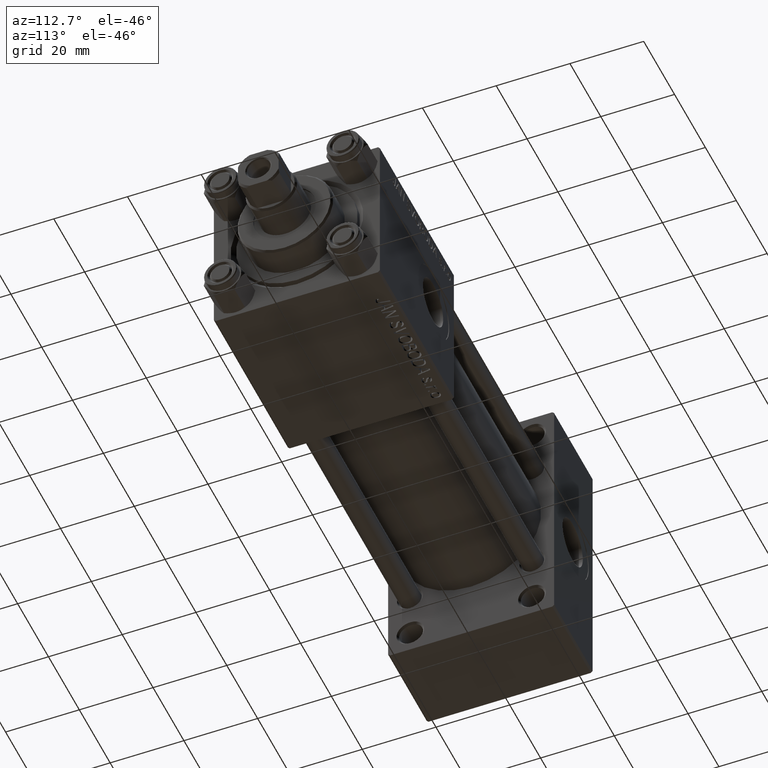
[diagram: clean part render]
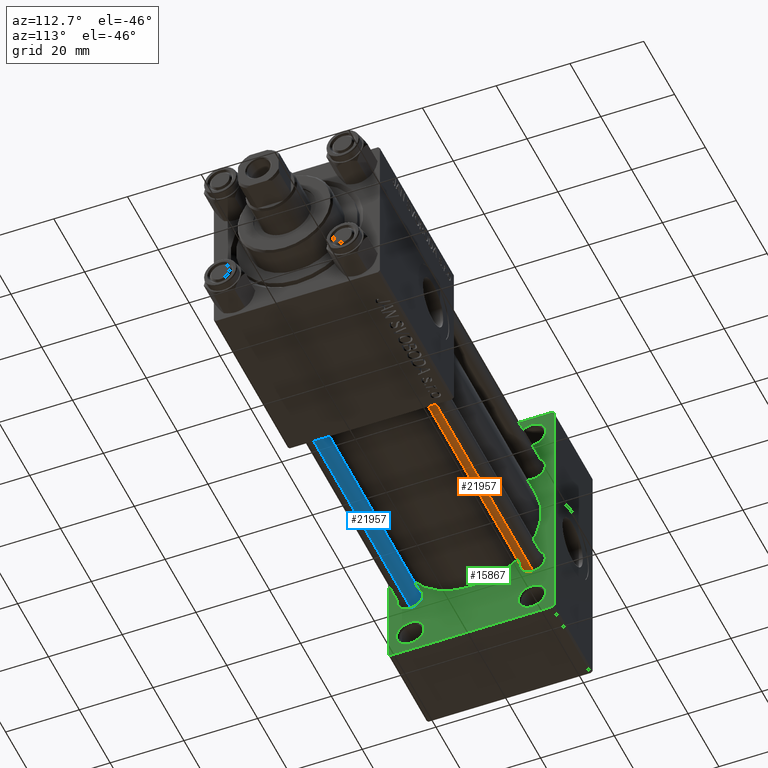
[diagram: same view with three faces highlighted in distinct colors, each labeled with its STEP entity id]
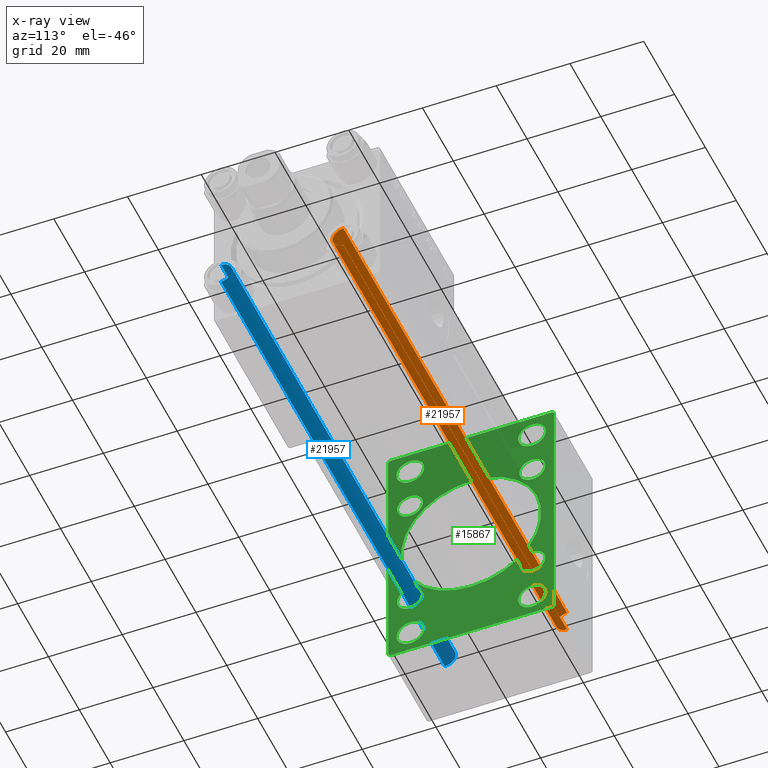
[diagram: x-ray of the same camera — body ghosted, the three highlighted faces saturated]
A machine part, auxiliary view with three faces highlighted in distinct colors.
The next image is the same camera in x-ray (body ghosted, the three faces saturated) — at least one of them is partly hidden behind the body in this view.
Their STEP definitions:

[orange] entity #21957 — the highlighted cylindrical surface (edge-blend (fillet) strip) has radius 3 mm, axis along (-1, 0, 0).
#138 = EDGE_CURVE ( 'NONE', #18203, #4237, #9981, .T. ) ;
#2865 = DIRECTION ( 'NONE',  ( -0.000000000000000000, -0.000000000000000000, -1.000000000000000000 ) ) ;
#3886 = EDGE_LOOP ( 'NONE', ( #37464, #24192, #49218, #7871 ) ) ;
#4237 = VERTEX_POINT ( 'NONE', #12541 ) ;
#5543 = CYLINDRICAL_SURFACE ( 'NONE', #32243, 3.000000000000000444 ) ;
#6536 = EDGE_CURVE ( 'NONE', #49014, #18203, #45547, .T. ) ;
#6652 = CARTESIAN_POINT ( 'NONE',  ( 3.000000000000000444, 3.673940397442060361E-16, 0.5000000000000004441 ) ) ;
#7871 = ORIENTED_EDGE ( 'NONE', *, *, #48553, .F. ) ;
#9981 = CIRCLE ( 'NONE', #37376, 3.000000000000000444 ) ;
#10184 = VECTOR ( 'NONE', #2865, 1000.000000000000000 ) ;
#10408 = DIRECTION ( 'NONE',  ( 1.000000000000000000, 0.000000000000000000, 0.000000000000000000 ) ) ;
#10796 = CARTESIAN_POINT ( 'NONE',  ( -3.000000000000000444, 0.000000000000000000, 145.5000000000000568 ) ) ;
#12541 = CARTESIAN_POINT ( 'NONE',  ( -3.000000000000000444, 0.000000000000000000, 0.5000000000000004441 ) ) ;
#13203 = DIRECTION ( 'NONE',  ( -0.000000000000000000, -0.000000000000000000, 1.000000000000000000 ) ) ;
#14369 = DIRECTION ( 'NONE',  ( -0.000000000000000000, -0.000000000000000000, -1.000000000000000000 ) ) ;
#17487 = DIRECTION ( 'NONE',  ( 1.000000000000000000, 0.000000000000000000, 0.000000000000000000 ) ) ;
#18021 = CARTESIAN_POINT ( 'NONE',  ( 3.000000000000000444, 3.673940397442060361E-16, 146.0000000000000000 ) ) ;
#18203 = VERTEX_POINT ( 'NONE', #6652 ) ;
#21957 = ADVANCED_FACE ( 'NONE', ( #25244 ), #5543, .T. ) ;
#24192 = ORIENTED_EDGE ( 'NONE', *, *, #6536, .T. ) ;
#25244 = FACE_OUTER_BOUND ( 'NONE', #3886, .T. ) ;
#29351 = CARTESIAN_POINT ( 'NONE',  ( 0.000000000000000000, 0.000000000000000000, 0.5000000000000004441 ) ) ;
#31167 = EDGE_CURVE ( 'NONE', #43561, #49014, #42769, .T. ) ;
#31487 = AXIS2_PLACEMENT_3D ( 'NONE', #45266, #33390, #10408 ) ;
#32100 = LINE ( 'NONE', #36145, #35178 ) ;
#32243 = AXIS2_PLACEMENT_3D ( 'NONE', #37115, #14369, #48485 ) ;
#33390 = DIRECTION ( 'NONE',  ( 0.000000000000000000, 0.000000000000000000, -1.000000000000000000 ) ) ;
#34787 = CARTESIAN_POINT ( 'NONE',  ( 3.000000000000000444, 3.673940397442060361E-16, 145.5000000000000568 ) ) ;
#35178 = VECTOR ( 'NONE', #42793, 1000.000000000000000 ) ;
#36145 = CARTESIAN_POINT ( 'NONE',  ( -3.000000000000000444, 0.000000000000000000, 146.0000000000000000 ) ) ;
#37115 = CARTESIAN_POINT ( 'NONE',  ( 0.000000000000000000, 0.000000000000000000, 146.0000000000000000 ) ) ;
#37376 = AXIS2_PLACEMENT_3D ( 'NONE', #29351, #13203, #17487 ) ;
#37464 = ORIENTED_EDGE ( 'NONE', *, *, #31167, .T. ) ;
#42769 = CIRCLE ( 'NONE', #31487, 3.000000000000000444 ) ;
#42793 = DIRECTION ( 'NONE',  ( -0.000000000000000000, -0.000000000000000000, -1.000000000000000000 ) ) ;
#43561 = VERTEX_POINT ( 'NONE', #10796 ) ;
#45266 = CARTESIAN_POINT ( 'NONE',  ( 0.000000000000000000, 0.000000000000000000, 145.5000000000000568 ) ) ;
#45547 = LINE ( 'NONE', #18021, #10184 ) ;
#48485 = DIRECTION ( 'NONE',  ( -1.000000000000000000, 0.000000000000000000, 0.000000000000000000 ) ) ;
#48553 = EDGE_CURVE ( 'NONE', #43561, #4237, #32100, .T. ) ;
#49014 = VERTEX_POINT ( 'NONE', #34787 ) ;
#49218 = ORIENTED_EDGE ( 'NONE', *, *, #138, .T. ) ;

[blue] entity #21957 — the highlighted cylindrical surface (edge-blend (fillet) strip) has radius 3 mm, axis along (1, -0, -0).
#138 = EDGE_CURVE ( 'NONE', #18203, #4237, #9981, .T. ) ;
#2865 = DIRECTION ( 'NONE',  ( -0.000000000000000000, -0.000000000000000000, -1.000000000000000000 ) ) ;
#3886 = EDGE_LOOP ( 'NONE', ( #37464, #24192, #49218, #7871 ) ) ;
#4237 = VERTEX_POINT ( 'NONE', #12541 ) ;
#5543 = CYLINDRICAL_SURFACE ( 'NONE', #32243, 3.000000000000000444 ) ;
#6536 = EDGE_CURVE ( 'NONE', #49014, #18203, #45547, .T. ) ;
#6652 = CARTESIAN_POINT ( 'NONE',  ( 3.000000000000000444, 3.673940397442060361E-16, 0.5000000000000004441 ) ) ;
#7871 = ORIENTED_EDGE ( 'NONE', *, *, #48553, .F. ) ;
#9981 = CIRCLE ( 'NONE', #37376, 3.000000000000000444 ) ;
#10184 = VECTOR ( 'NONE', #2865, 1000.000000000000000 ) ;
#10408 = DIRECTION ( 'NONE',  ( 1.000000000000000000, 0.000000000000000000, 0.000000000000000000 ) ) ;
#10796 = CARTESIAN_POINT ( 'NONE',  ( -3.000000000000000444, 0.000000000000000000, 145.5000000000000568 ) ) ;
#12541 = CARTESIAN_POINT ( 'NONE',  ( -3.000000000000000444, 0.000000000000000000, 0.5000000000000004441 ) ) ;
#13203 = DIRECTION ( 'NONE',  ( -0.000000000000000000, -0.000000000000000000, 1.000000000000000000 ) ) ;
#14369 = DIRECTION ( 'NONE',  ( -0.000000000000000000, -0.000000000000000000, -1.000000000000000000 ) ) ;
#17487 = DIRECTION ( 'NONE',  ( 1.000000000000000000, 0.000000000000000000, 0.000000000000000000 ) ) ;
#18021 = CARTESIAN_POINT ( 'NONE',  ( 3.000000000000000444, 3.673940397442060361E-16, 146.0000000000000000 ) ) ;
#18203 = VERTEX_POINT ( 'NONE', #6652 ) ;
#21957 = ADVANCED_FACE ( 'NONE', ( #25244 ), #5543, .T. ) ;
#24192 = ORIENTED_EDGE ( 'NONE', *, *, #6536, .T. ) ;
#25244 = FACE_OUTER_BOUND ( 'NONE', #3886, .T. ) ;
#29351 = CARTESIAN_POINT ( 'NONE',  ( 0.000000000000000000, 0.000000000000000000, 0.5000000000000004441 ) ) ;
#31167 = EDGE_CURVE ( 'NONE', #43561, #49014, #42769, .T. ) ;
#31487 = AXIS2_PLACEMENT_3D ( 'NONE', #45266, #33390, #10408 ) ;
#32100 = LINE ( 'NONE', #36145, #35178 ) ;
#32243 = AXIS2_PLACEMENT_3D ( 'NONE', #37115, #14369, #48485 ) ;
#33390 = DIRECTION ( 'NONE',  ( 0.000000000000000000, 0.000000000000000000, -1.000000000000000000 ) ) ;
#34787 = CARTESIAN_POINT ( 'NONE',  ( 3.000000000000000444, 3.673940397442060361E-16, 145.5000000000000568 ) ) ;
#35178 = VECTOR ( 'NONE', #42793, 1000.000000000000000 ) ;
#36145 = CARTESIAN_POINT ( 'NONE',  ( -3.000000000000000444, 0.000000000000000000, 146.0000000000000000 ) ) ;
#37115 = CARTESIAN_POINT ( 'NONE',  ( 0.000000000000000000, 0.000000000000000000, 146.0000000000000000 ) ) ;
#37376 = AXIS2_PLACEMENT_3D ( 'NONE', #29351, #13203, #17487 ) ;
#37464 = ORIENTED_EDGE ( 'NONE', *, *, #31167, .T. ) ;
#42769 = CIRCLE ( 'NONE', #31487, 3.000000000000000444 ) ;
#42793 = DIRECTION ( 'NONE',  ( -0.000000000000000000, -0.000000000000000000, -1.000000000000000000 ) ) ;
#43561 = VERTEX_POINT ( 'NONE', #10796 ) ;
#45266 = CARTESIAN_POINT ( 'NONE',  ( 0.000000000000000000, 0.000000000000000000, 145.5000000000000568 ) ) ;
#45547 = LINE ( 'NONE', #18021, #10184 ) ;
#48485 = DIRECTION ( 'NONE',  ( -1.000000000000000000, 0.000000000000000000, 0.000000000000000000 ) ) ;
#48553 = EDGE_CURVE ( 'NONE', #43561, #4237, #32100, .T. ) ;
#49014 = VERTEX_POINT ( 'NONE', #34787 ) ;
#49218 = ORIENTED_EDGE ( 'NONE', *, *, #138, .T. ) ;

[green] entity #15867 — the highlighted planar face has unit normal (-1, 0, 0).
#418 = CARTESIAN_POINT ( 'NONE',  ( 25.00000000000000000, 22.50000000000000355, 35.00000000000000711 ) ) ;
#506 = DIRECTION ( 'NONE',  ( 1.000000000000000000, -0.000000000000000000, 0.000000000000000000 ) ) ;
#593 = DIRECTION ( 'NONE',  ( 0.000000000000000000, 0.000000000000000000, 1.000000000000000000 ) ) ;
#666 = LINE ( 'NONE', #418, #42437 ) ;
#805 = EDGE_LOOP ( 'NONE', ( #44444, #30380 ) ) ;
#1075 = ORIENTED_EDGE ( 'NONE', *, *, #14099, .T. ) ;
#1102 = CIRCLE ( 'NONE', #7579, 3.499999999999978684 ) ;
#1874 = LINE ( 'NONE', #36983, #45800 ) ;
#1968 = FACE_BOUND ( 'NONE', #32116, .T. ) ;
#2245 = EDGE_CURVE ( 'NONE', #10762, #38475, #33436, .T. ) ;
#2294 = LINE ( 'NONE', #25531, #35576 ) ;
#2688 = EDGE_CURVE ( 'NONE', #37779, #14297, #30460, .T. ) ;
#2908 = ORIENTED_EDGE ( 'NONE', *, *, #23578, .T. ) ;
#3317 = DIRECTION ( 'NONE',  ( 0.000000000000000000, 0.000000000000000000, 1.000000000000000000 ) ) ;
#3626 = DIRECTION ( 'NONE',  ( -0.000000000000000000, 0.7071067811865525687, 0.7071067811865425767 ) ) ;
#3783 = CARTESIAN_POINT ( 'NONE',  ( 25.00000000000000000, 16.59999999999999787, -16.60000000000000497 ) ) ;
#4569 = AXIS2_PLACEMENT_3D ( 'NONE', #3783, #12357, #11616 ) ;
#4776 = FACE_BOUND ( 'NONE', #805, .T. ) ;
#4867 = CARTESIAN_POINT ( 'NONE',  ( 25.00000000000000000, -16.59999999999999076, -16.60000000000000853 ) ) ;
#4901 = DIRECTION ( 'NONE',  ( -1.000000000000000000, 0.000000000000000000, -0.000000000000000000 ) ) ;
#4902 = EDGE_CURVE ( 'NONE', #7969, #10017, #36767, .T. ) ;
#5245 = DIRECTION ( 'NONE',  ( 0.000000000000000000, -1.000000000000000000, -1.541976423090495387E-16 ) ) ;
#5265 = FACE_BOUND ( 'NONE', #11209, .T. ) ;
#5522 = EDGE_LOOP ( 'NONE', ( #9735, #9721, #40513, #24869, #40748, #13573, #1075, #22477 ) ) ;
#5761 = FACE_BOUND ( 'NONE', #37036, .T. ) ;
#6153 = CARTESIAN_POINT ( 'NONE',  ( 24.99999999999999289, -2.602085213965210642E-15, 19.00000000000000000 ) ) ;
#6373 = CIRCLE ( 'NONE', #49945, 3.749999999999985789 ) ;
#6407 = CIRCLE ( 'NONE', #23362, 3.750000000000017319 ) ;
#6513 = CARTESIAN_POINT ( 'NONE',  ( 25.00000000000000000, 22.50000000000000355, 34.49999999999999289 ) ) ;
#6922 = ORIENTED_EDGE ( 'NONE', *, *, #41241, .T. ) ;
#6983 = CARTESIAN_POINT ( 'NONE',  ( 25.00000000000000000, -21.99999999999998934, -35.00000000000000000 ) ) ;
#6987 = ORIENTED_EDGE ( 'NONE', *, *, #30211, .T. ) ;
#7203 = ORIENTED_EDGE ( 'NONE', *, *, #29950, .T. ) ;
#7420 = CIRCLE ( 'NONE', #28370, 3.749999999999985789 ) ;
#7500 = DIRECTION ( 'NONE',  ( -1.000000000000000000, 0.000000000000000000, -0.000000000000000000 ) ) ;
#7566 = DIRECTION ( 'NONE',  ( 0.000000000000000000, 0.000000000000000000, 1.000000000000000000 ) ) ;
#7579 = AXIS2_PLACEMENT_3D ( 'NONE', #48203, #17130, #28264 ) ;
#7717 = VERTEX_POINT ( 'NONE', #16059 ) ;
#7752 = AXIS2_PLACEMENT_3D ( 'NONE', #33392, #45515, #22275 ) ;
#7764 = DIRECTION ( 'NONE',  ( 0.000000000000000000, 0.000000000000000000, 1.000000000000000000 ) ) ;
#7969 = VERTEX_POINT ( 'NONE', #31907 ) ;
#8092 = EDGE_CURVE ( 'NONE', #35474, #46070, #14964, .T. ) ;
#8672 = DIRECTION ( 'NONE',  ( 0.000000000000000000, 0.000000000000000000, 1.000000000000000000 ) ) ;
#8814 = FACE_BOUND ( 'NONE', #14482, .T. ) ;
#9056 = DIRECTION ( 'NONE',  ( -1.000000000000000000, 0.000000000000000000, -0.000000000000000000 ) ) ;
#9068 = CARTESIAN_POINT ( 'NONE',  ( 25.00000000000000000, 0.000000000000000000, 0.000000000000000000 ) ) ;
#9149 = DIRECTION ( 'NONE',  ( -1.000000000000000000, 0.000000000000000000, -0.000000000000000000 ) ) ;
#9392 = CIRCLE ( 'NONE', #39259, 3.749999999999989342 ) ;
#9721 = ORIENTED_EDGE ( 'NONE', *, *, #34683, .T. ) ;
#9735 = ORIENTED_EDGE ( 'NONE', *, *, #26199, .F. ) ;
#10017 = VERTEX_POINT ( 'NONE', #42658 ) ;
#10219 = CIRCLE ( 'NONE', #4569, 3.499999999999961364 ) ;
#10255 = VERTEX_POINT ( 'NONE', #44647 ) ;
#10351 = EDGE_CURVE ( 'NONE', #37700, #10742, #9392, .T. ) ;
#10735 = ORIENTED_EDGE ( 'NONE', *, *, #39042, .F. ) ;
#10742 = VERTEX_POINT ( 'NONE', #32587 ) ;
#10762 = VERTEX_POINT ( 'NONE', #17433 ) ;
#10929 = EDGE_CURVE ( 'NONE', #36364, #38655, #10219, .T. ) ;
#11104 = DIRECTION ( 'NONE',  ( -1.000000000000000000, 0.000000000000000000, -0.000000000000000000 ) ) ;
#11207 = CARTESIAN_POINT ( 'NONE',  ( 25.00000000000000000, 22.50000000000000355, -34.49999999999999289 ) ) ;
#11209 = EDGE_LOOP ( 'NONE', ( #31440, #36353 ) ) ;
#11509 = CIRCLE ( 'NONE', #27624, 3.499999999999961364 ) ;
#11616 = DIRECTION ( 'NONE',  ( 0.000000000000000000, 0.000000000000000000, 1.000000000000000000 ) ) ;
#11685 = AXIS2_PLACEMENT_3D ( 'NONE', #44250, #9149, #24552 ) ;
#11837 = VERTEX_POINT ( 'NONE', #25031 ) ;
#11863 = CARTESIAN_POINT ( 'NONE',  ( 25.00000000000000000, 22.00000000000000355, 35.00000000000000711 ) ) ;
#11872 = CARTESIAN_POINT ( 'NONE',  ( 25.00000000000000000, 16.59999999999999787, 20.09999999999996589 ) ) ;
#12107 = DIRECTION ( 'NONE',  ( 0.000000000000000000, -1.000000000000000000, -1.541976423090495387E-16 ) ) ;
#12357 = DIRECTION ( 'NONE',  ( -1.000000000000000000, 0.000000000000000000, -0.000000000000000000 ) ) ;
#12413 = AXIS2_PLACEMENT_3D ( 'NONE', #27542, #506, #35859 ) ;
#12779 = DIRECTION ( 'NONE',  ( 0.000000000000000000, 0.000000000000000000, 1.000000000000000000 ) ) ;
#13157 = AXIS2_PLACEMENT_3D ( 'NONE', #46457, #11104, #7566 ) ;
#13340 = FACE_BOUND ( 'NONE', #15647, .T. ) ;
#13483 = VERTEX_POINT ( 'NONE', #6153 ) ;
#13573 = ORIENTED_EDGE ( 'NONE', *, *, #2688, .T. ) ;
#13587 = FACE_OUTER_BOUND ( 'NONE', #5522, .T. ) ;
#13998 = CARTESIAN_POINT ( 'NONE',  ( 25.00000000000000000, 22.00000000000000355, 35.00000000000000711 ) ) ;
#14099 = EDGE_CURVE ( 'NONE', #14297, #7717, #1874, .T. ) ;
#14275 = ORIENTED_EDGE ( 'NONE', *, *, #31506, .T. ) ;
#14297 = VERTEX_POINT ( 'NONE', #19283 ) ;
#14482 = EDGE_LOOP ( 'NONE', ( #15047, #33255 ) ) ;
#14830 = EDGE_CURVE ( 'NONE', #38350, #19152, #30803, .T. ) ;
#14964 = CIRCLE ( 'NONE', #29508, 3.750000000000017319 ) ;
#15047 = ORIENTED_EDGE ( 'NONE', *, *, #18531, .T. ) ;
#15231 = CARTESIAN_POINT ( 'NONE',  ( 25.00000000000000000, -16.59999999999999076, -20.09999999999998366 ) ) ;
#15565 = CARTESIAN_POINT ( 'NONE',  ( 25.00000000000000000, 16.59999999999999787, -20.09999999999996589 ) ) ;
#15647 = EDGE_LOOP ( 'NONE', ( #14275, #6922 ) ) ;
#15867 = ADVANCED_FACE ( 'NONE', ( #16383, #1968, #4776, #32534, #8814, #5761, #5265, #13340, #36335, #13587 ), #36578, .F. ) ;
#15999 = CARTESIAN_POINT ( 'NONE',  ( 25.00000000000000000, 16.49999999999999289, 28.99999999999998934 ) ) ;
#16059 = CARTESIAN_POINT ( 'NONE',  ( 25.00000000000000000, -22.49999999999999645, -34.50000000000000000 ) ) ;
#16328 = CARTESIAN_POINT ( 'NONE',  ( 25.00000000000000000, 16.59999999999999787, -13.10000000000004228 ) ) ;
#16383 = FACE_BOUND ( 'NONE', #39673, .T. ) ;
#16576 = VECTOR ( 'NONE', #12107, 1000.000000000000000 ) ;
#16761 = CARTESIAN_POINT ( 'NONE',  ( 25.00000000000000000, 16.49999999999999289, -29.00000000000000711 ) ) ;
#17130 = DIRECTION ( 'NONE',  ( -1.000000000000000000, 0.000000000000000000, -0.000000000000000000 ) ) ;
#17372 = DIRECTION ( 'NONE',  ( -0.000000000000000000, 0.000000000000000000, 1.000000000000000000 ) ) ;
#17433 = CARTESIAN_POINT ( 'NONE',  ( 25.00000000000000000, -16.50000000000000711, -25.25000000000002132 ) ) ;
#18531 = EDGE_CURVE ( 'NONE', #45248, #11837, #28215, .T. ) ;
#18679 = CIRCLE ( 'NONE', #25128, 19.00000000000000000 ) ;
#19152 = VERTEX_POINT ( 'NONE', #13998 ) ;
#19283 = CARTESIAN_POINT ( 'NONE',  ( 25.00000000000000000, -22.49999999999999645, 34.50000000000000000 ) ) ;
#20176 = DIRECTION ( 'NONE',  ( -1.000000000000000000, 0.000000000000000000, -0.000000000000000000 ) ) ;
#20382 = DIRECTION ( 'NONE',  ( 0.000000000000000000, 0.000000000000000000, 1.000000000000000000 ) ) ;
#20392 = EDGE_CURVE ( 'NONE', #7717, #26288, #2294, .T. ) ;
#20741 = ORIENTED_EDGE ( 'NONE', *, *, #10351, .T. ) ;
#20802 = VERTEX_POINT ( 'NONE', #38843 ) ;
#21337 = CARTESIAN_POINT ( 'NONE',  ( 25.00000000000000000, 16.49999999999999289, -29.00000000000000711 ) ) ;
#21735 = CIRCLE ( 'NONE', #48390, 3.749999999999989342 ) ;
#22000 = VERTEX_POINT ( 'NONE', #45932 ) ;
#22057 = LINE ( 'NONE', #11207, #34844 ) ;
#22275 = DIRECTION ( 'NONE',  ( 0.000000000000000000, 0.000000000000000000, 1.000000000000000000 ) ) ;
#22477 = ORIENTED_EDGE ( 'NONE', *, *, #20392, .T. ) ;
#22632 = CARTESIAN_POINT ( 'NONE',  ( 25.00000000000000000, -22.49999999999999645, 34.50000000000000000 ) ) ;
#23151 = DIRECTION ( 'NONE',  ( 0.000000000000000000, 0.000000000000000000, 1.000000000000000000 ) ) ;
#23362 = AXIS2_PLACEMENT_3D ( 'NONE', #36193, #28116, #8672 ) ;
#23578 = EDGE_CURVE ( 'NONE', #22000, #42397, #7420, .T. ) ;
#23712 = DIRECTION ( 'NONE',  ( 0.000000000000000000, -0.7071067811865376918, 0.7071067811865574537 ) ) ;
#23719 = CARTESIAN_POINT ( 'NONE',  ( 25.00000000000000000, 16.49999999999999289, -25.25000000000002132 ) ) ;
#23816 = DIRECTION ( 'NONE',  ( 0.000000000000000000, 0.000000000000000000, 1.000000000000000000 ) ) ;
#23858 = ORIENTED_EDGE ( 'NONE', *, *, #36234, .T. ) ;
#24188 = VERTEX_POINT ( 'NONE', #11872 ) ;
#24202 = DIRECTION ( 'NONE',  ( 0.000000000000000000, 0.000000000000000000, -1.000000000000000000 ) ) ;
#24317 = DIRECTION ( 'NONE',  ( -1.000000000000000000, 0.000000000000000000, -0.000000000000000000 ) ) ;
#24455 = DIRECTION ( 'NONE',  ( 0.000000000000000000, 0.000000000000000000, 1.000000000000000000 ) ) ;
#24552 = DIRECTION ( 'NONE',  ( 0.000000000000000000, 0.000000000000000000, 1.000000000000000000 ) ) ;
#24869 = ORIENTED_EDGE ( 'NONE', *, *, #14830, .T. ) ;
#24934 = CARTESIAN_POINT ( 'NONE',  ( 25.00000000000000000, 22.50000000000000355, -34.99999999999999289 ) ) ;
#25031 = CARTESIAN_POINT ( 'NONE',  ( 25.00000000000000000, -16.59999999999999076, -13.10000000000003162 ) ) ;
#25128 = AXIS2_PLACEMENT_3D ( 'NONE', #44997, #49278, #3317 ) ;
#25269 = CIRCLE ( 'NONE', #13157, 3.499999999999961364 ) ;
#25531 = CARTESIAN_POINT ( 'NONE',  ( 25.00000000000000000, -22.00000000000000355, -35.00000000000000000 ) ) ;
#25829 = CARTESIAN_POINT ( 'NONE',  ( 25.00000000000000000, -21.99999999999998934, 35.00000000000000000 ) ) ;
#26199 = EDGE_CURVE ( 'NONE', #35909, #26288, #39862, .T. ) ;
#26288 = VERTEX_POINT ( 'NONE', #6983 ) ;
#26453 = CARTESIAN_POINT ( 'NONE',  ( 25.00000000000000000, 16.59999999999999787, 16.60000000000000497 ) ) ;
#26693 = CARTESIAN_POINT ( 'NONE',  ( 25.00000000000000000, 16.49999999999999289, 32.75000000000000711 ) ) ;
#27229 = ORIENTED_EDGE ( 'NONE', *, *, #10929, .T. ) ;
#27513 = LINE ( 'NONE', #38885, #16576 ) ;
#27542 = CARTESIAN_POINT ( 'NONE',  ( 24.99999999999999289, -2.602085213965210642E-15, 0.000000000000000000 ) ) ;
#27624 = AXIS2_PLACEMENT_3D ( 'NONE', #45884, #7500, #37557 ) ;
#28026 = EDGE_CURVE ( 'NONE', #38475, #10762, #6373, .T. ) ;
#28116 = DIRECTION ( 'NONE',  ( -1.000000000000000000, 0.000000000000000000, -0.000000000000000000 ) ) ;
#28139 = AXIS2_PLACEMENT_3D ( 'NONE', #9068, #20176, #17372 ) ;
#28215 = CIRCLE ( 'NONE', #29812, 3.499999999999975131 ) ;
#28264 = DIRECTION ( 'NONE',  ( 0.000000000000000000, 0.000000000000000000, 1.000000000000000000 ) ) ;
#28370 = AXIS2_PLACEMENT_3D ( 'NONE', #21337, #40788, #33211 ) ;
#29074 = DIRECTION ( 'NONE',  ( 0.000000000000000000, 0.7071067811865426878, -0.7071067811865524577 ) ) ;
#29508 = AXIS2_PLACEMENT_3D ( 'NONE', #15999, #31661, #593 ) ;
#29700 = DIRECTION ( 'NONE',  ( -0.000000000000000000, -0.7071067811865426878, -0.7071067811865524577 ) ) ;
#29812 = AXIS2_PLACEMENT_3D ( 'NONE', #4867, #24317, #23816 ) ;
#29950 = EDGE_CURVE ( 'NONE', #10742, #37700, #21735, .T. ) ;
#30163 = CARTESIAN_POINT ( 'NONE',  ( 25.00000000000000000, 16.59999999999999787, 13.10000000000004228 ) ) ;
#30211 = EDGE_CURVE ( 'NONE', #46070, #35474, #6407, .T. ) ;
#30380 = ORIENTED_EDGE ( 'NONE', *, *, #2245, .T. ) ;
#30460 = LINE ( 'NONE', #22632, #39128 ) ;
#30803 = LINE ( 'NONE', #11863, #42640 ) ;
#31259 = EDGE_LOOP ( 'NONE', ( #2908, #41378 ) ) ;
#31440 = ORIENTED_EDGE ( 'NONE', *, *, #43395, .T. ) ;
#31506 = EDGE_CURVE ( 'NONE', #48490, #24188, #37936, .T. ) ;
#31661 = DIRECTION ( 'NONE',  ( -1.000000000000000000, 0.000000000000000000, -0.000000000000000000 ) ) ;
#31907 = CARTESIAN_POINT ( 'NONE',  ( 25.00000000000000000, -16.59999999999999076, 20.09999999999998721 ) ) ;
#31961 = CARTESIAN_POINT ( 'NONE',  ( 25.00000000000000000, -16.50000000000000711, 28.99999999999998934 ) ) ;
#32116 = EDGE_LOOP ( 'NONE', ( #20741, #7203 ) ) ;
#32534 = FACE_BOUND ( 'NONE', #31259, .T. ) ;
#32587 = CARTESIAN_POINT ( 'NONE',  ( 25.00000000000000000, -16.50000000000000711, 32.74999999999997868 ) ) ;
#32652 = CARTESIAN_POINT ( 'NONE',  ( 25.00000000000000000, -16.50000000000000711, 25.25000000000000000 ) ) ;
#32917 = ORIENTED_EDGE ( 'NONE', *, *, #8092, .T. ) ;
#33211 = DIRECTION ( 'NONE',  ( 0.000000000000000000, 0.000000000000000000, 1.000000000000000000 ) ) ;
#33255 = ORIENTED_EDGE ( 'NONE', *, *, #41858, .T. ) ;
#33392 = CARTESIAN_POINT ( 'NONE',  ( 25.00000000000000000, -16.59999999999999076, 16.60000000000000853 ) ) ;
#33436 = CIRCLE ( 'NONE', #11685, 3.749999999999985789 ) ;
#33884 = AXIS2_PLACEMENT_3D ( 'NONE', #26453, #34273, #7764 ) ;
#34273 = DIRECTION ( 'NONE',  ( -1.000000000000000000, 0.000000000000000000, -0.000000000000000000 ) ) ;
#34683 = EDGE_CURVE ( 'NONE', #35909, #10255, #22057, .T. ) ;
#34844 = VECTOR ( 'NONE', #3626, 999.9999999999998863 ) ;
#34980 = EDGE_CURVE ( 'NONE', #20802, #13483, #18679, .T. ) ;
#35072 = CARTESIAN_POINT ( 'NONE',  ( 25.00000000000000000, 16.49999999999999289, 25.24999999999997513 ) ) ;
#35474 = VERTEX_POINT ( 'NONE', #35072 ) ;
#35556 = CARTESIAN_POINT ( 'NONE',  ( 25.00000000000000000, -16.50000000000000711, -29.00000000000000711 ) ) ;
#35576 = VECTOR ( 'NONE', #29074, 1000.000000000000000 ) ;
#35717 = DIRECTION ( 'NONE',  ( 0.000000000000000000, 0.000000000000000000, 1.000000000000000000 ) ) ;
#35768 = CIRCLE ( 'NONE', #39813, 3.499999999999975131 ) ;
#35859 = DIRECTION ( 'NONE',  ( 0.000000000000000000, 0.000000000000000000, 1.000000000000000000 ) ) ;
#35909 = VERTEX_POINT ( 'NONE', #36681 ) ;
#36054 = DIRECTION ( 'NONE',  ( -1.000000000000000000, 0.000000000000000000, -0.000000000000000000 ) ) ;
#36077 = CARTESIAN_POINT ( 'NONE',  ( 25.00000000000000000, -16.59999999999999076, -16.60000000000000853 ) ) ;
#36193 = CARTESIAN_POINT ( 'NONE',  ( 25.00000000000000000, 16.49999999999999289, 28.99999999999998934 ) ) ;
#36234 = EDGE_CURVE ( 'NONE', #38655, #36364, #11509, .T. ) ;
#36335 = FACE_BOUND ( 'NONE', #46614, .T. ) ;
#36353 = ORIENTED_EDGE ( 'NONE', *, *, #4902, .T. ) ;
#36364 = VERTEX_POINT ( 'NONE', #15565 ) ;
#36578 = PLANE ( 'NONE',  #28139 ) ;
#36681 = CARTESIAN_POINT ( 'NONE',  ( 25.00000000000000000, 21.99999999999999645, -34.99999999999999289 ) ) ;
#36767 = CIRCLE ( 'NONE', #7752, 3.499999999999978684 ) ;
#36983 = CARTESIAN_POINT ( 'NONE',  ( 25.00000000000000000, -22.49999999999999645, 35.00000000000000000 ) ) ;
#37036 = EDGE_LOOP ( 'NONE', ( #27229, #23858 ) ) ;
#37557 = DIRECTION ( 'NONE',  ( 0.000000000000000000, 0.000000000000000000, 1.000000000000000000 ) ) ;
#37700 = VERTEX_POINT ( 'NONE', #32652 ) ;
#37779 = VERTEX_POINT ( 'NONE', #25829 ) ;
#37936 = CIRCLE ( 'NONE', #33884, 3.499999999999961364 ) ;
#38189 = CIRCLE ( 'NONE', #12413, 19.00000000000000000 ) ;
#38350 = VERTEX_POINT ( 'NONE', #6513 ) ;
#38475 = VERTEX_POINT ( 'NONE', #40631 ) ;
#38655 = VERTEX_POINT ( 'NONE', #16328 ) ;
#38843 = CARTESIAN_POINT ( 'NONE',  ( 24.99999999999999289, -2.752562955852396712E-16, -19.00000000000000000 ) ) ;
#38885 = CARTESIAN_POINT ( 'NONE',  ( 25.00000000000000000, 22.50000000000000355, 35.00000000000000711 ) ) ;
#39042 = EDGE_CURVE ( 'NONE', #13483, #20802, #38189, .T. ) ;
#39128 = VECTOR ( 'NONE', #29700, 1000.000000000000000 ) ;
#39259 = AXIS2_PLACEMENT_3D ( 'NONE', #46386, #42107, #23151 ) ;
#39673 = EDGE_LOOP ( 'NONE', ( #32917, #6987 ) ) ;
#39813 = AXIS2_PLACEMENT_3D ( 'NONE', #36077, #9056, #24455 ) ;
#39862 = LINE ( 'NONE', #24934, #48276 ) ;
#40513 = ORIENTED_EDGE ( 'NONE', *, *, #48967, .F. ) ;
#40631 = CARTESIAN_POINT ( 'NONE',  ( 25.00000000000000000, -16.50000000000000711, -32.74999999999999289 ) ) ;
#40748 = ORIENTED_EDGE ( 'NONE', *, *, #47879, .T. ) ;
#40788 = DIRECTION ( 'NONE',  ( -1.000000000000000000, 0.000000000000000000, -0.000000000000000000 ) ) ;
#41241 = EDGE_CURVE ( 'NONE', #24188, #48490, #25269, .T. ) ;
#41378 = ORIENTED_EDGE ( 'NONE', *, *, #43922, .T. ) ;
#41858 = EDGE_CURVE ( 'NONE', #11837, #45248, #35768, .T. ) ;
#42107 = DIRECTION ( 'NONE',  ( -1.000000000000000000, 0.000000000000000000, -0.000000000000000000 ) ) ;
#42397 = VERTEX_POINT ( 'NONE', #23719 ) ;
#42437 = VECTOR ( 'NONE', #45892, 1000.000000000000000 ) ;
#42640 = VECTOR ( 'NONE', #23712, 999.9999999999998863 ) ;
#42658 = CARTESIAN_POINT ( 'NONE',  ( 25.00000000000000000, -16.59999999999999076, 13.10000000000002807 ) ) ;
#43395 = EDGE_CURVE ( 'NONE', #10017, #7969, #1102, .T. ) ;
#43921 = CIRCLE ( 'NONE', #49525, 3.749999999999985789 ) ;
#43922 = EDGE_CURVE ( 'NONE', #42397, #22000, #43921, .T. ) ;
#44250 = CARTESIAN_POINT ( 'NONE',  ( 25.00000000000000000, -16.50000000000000711, -29.00000000000000711 ) ) ;
#44444 = ORIENTED_EDGE ( 'NONE', *, *, #28026, .T. ) ;
#44647 = CARTESIAN_POINT ( 'NONE',  ( 25.00000000000000000, 22.50000000000000355, -34.49999999999999289 ) ) ;
#44997 = CARTESIAN_POINT ( 'NONE',  ( 24.99999999999999289, -2.602085213965210642E-15, 0.000000000000000000 ) ) ;
#45248 = VERTEX_POINT ( 'NONE', #15231 ) ;
#45515 = DIRECTION ( 'NONE',  ( -1.000000000000000000, 0.000000000000000000, -0.000000000000000000 ) ) ;
#45800 = VECTOR ( 'NONE', #24202, 1000.000000000000000 ) ;
#45884 = CARTESIAN_POINT ( 'NONE',  ( 25.00000000000000000, 16.59999999999999787, -16.60000000000000497 ) ) ;
#45892 = DIRECTION ( 'NONE',  ( 0.000000000000000000, 0.000000000000000000, -1.000000000000000000 ) ) ;
#45932 = CARTESIAN_POINT ( 'NONE',  ( 25.00000000000000000, 16.49999999999999289, -32.74999999999999289 ) ) ;
#46070 = VERTEX_POINT ( 'NONE', #26693 ) ;
#46386 = CARTESIAN_POINT ( 'NONE',  ( 25.00000000000000000, -16.50000000000000711, 28.99999999999998934 ) ) ;
#46457 = CARTESIAN_POINT ( 'NONE',  ( 25.00000000000000000, 16.59999999999999787, 16.60000000000000497 ) ) ;
#46614 = EDGE_LOOP ( 'NONE', ( #10735, #47778 ) ) ;
#47379 = DIRECTION ( 'NONE',  ( -1.000000000000000000, 0.000000000000000000, -0.000000000000000000 ) ) ;
#47778 = ORIENTED_EDGE ( 'NONE', *, *, #34980, .F. ) ;
#47879 = EDGE_CURVE ( 'NONE', #19152, #37779, #27513, .T. ) ;
#48203 = CARTESIAN_POINT ( 'NONE',  ( 25.00000000000000000, -16.59999999999999076, 16.60000000000000853 ) ) ;
#48276 = VECTOR ( 'NONE', #5245, 1000.000000000000000 ) ;
#48390 = AXIS2_PLACEMENT_3D ( 'NONE', #31961, #47379, #12779 ) ;
#48490 = VERTEX_POINT ( 'NONE', #30163 ) ;
#48967 = EDGE_CURVE ( 'NONE', #38350, #10255, #666, .T. ) ;
#49278 = DIRECTION ( 'NONE',  ( 1.000000000000000000, -0.000000000000000000, 0.000000000000000000 ) ) ;
#49525 = AXIS2_PLACEMENT_3D ( 'NONE', #16761, #4901, #35717 ) ;
#49945 = AXIS2_PLACEMENT_3D ( 'NONE', #35556, #36054, #20382 ) ;